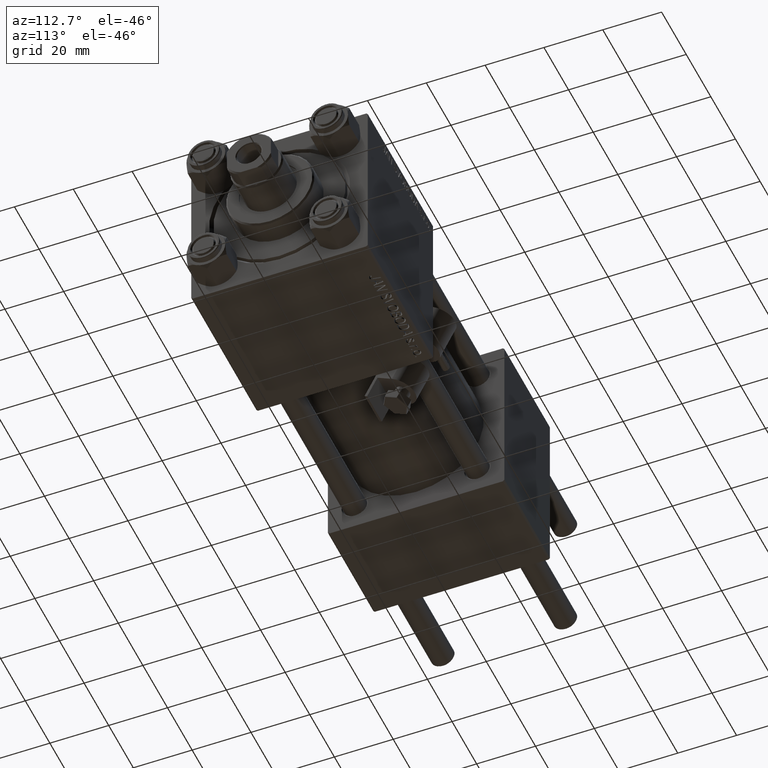
[diagram: clean part render]
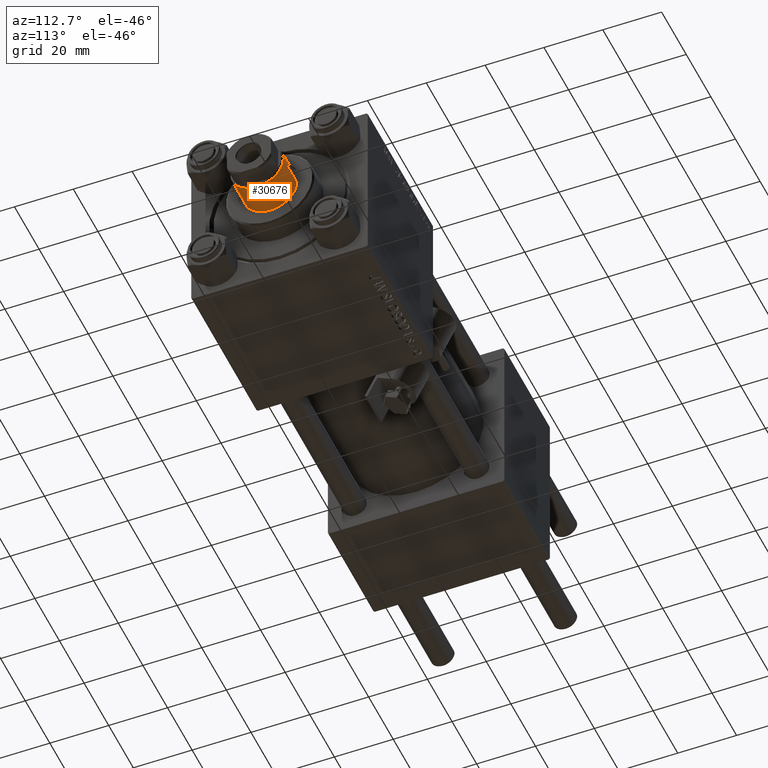
[diagram: same view with one face highlighted and labeled with its STEP entity id]
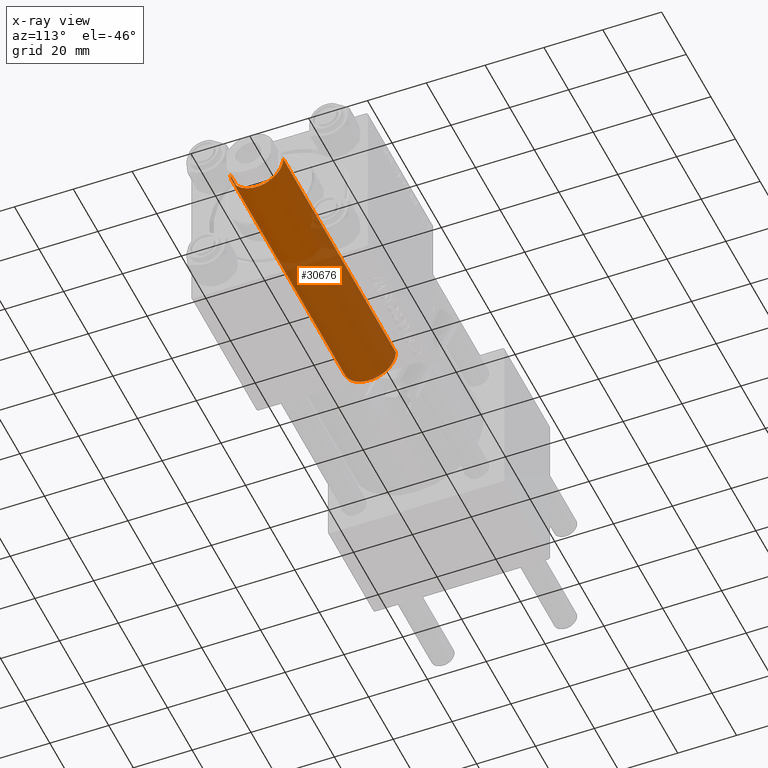
[diagram: x-ray of the same camera — body ghosted, the highlighted face saturated]
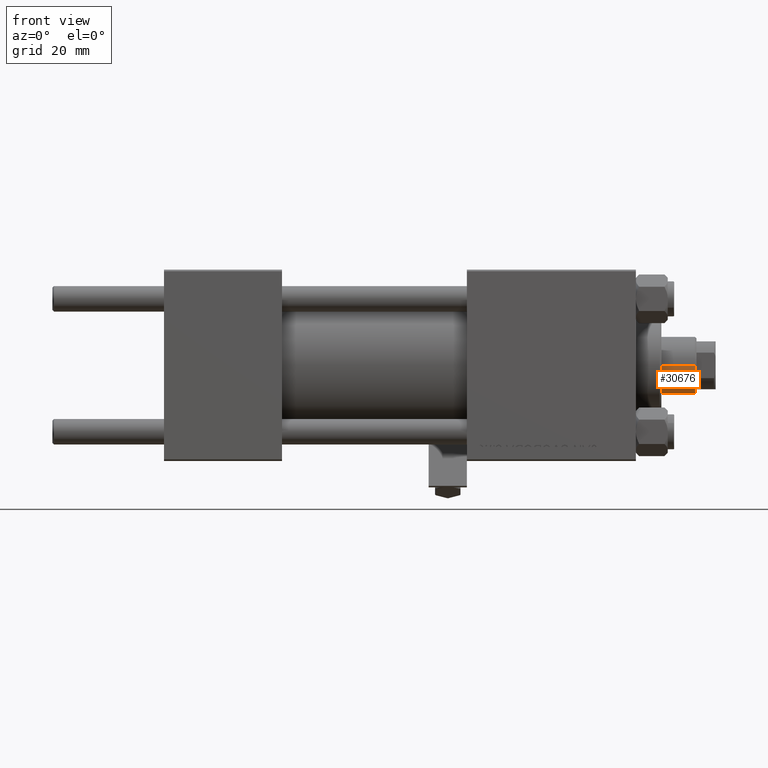
[diagram: same view with one face highlighted and labeled with its STEP entity id]
A machine part, auxiliary view. The second image highlights one B-rep face of the part: STEP entity #30676.
The next image is the same camera in x-ray: the body ghosted, the highlighted face saturated — about 63% of this face is hidden behind the body in this view.
A second angle (front view) of the same face is appended — the face is thin or edge-on in the first view.
In plain terms, the highlighted cylindrical surface (edge-blend (fillet) strip) has radius 9 mm, axis along (-1, 0, 0).
Its self-contained STEP definition (entity closure, byte-faithful):
#2902 = VECTOR ( 'NONE', #43372, 1000.000000000000000 ) ;
#4431 = VECTOR ( 'NONE', #47092, 1000.000000000000000 ) ;
#7700 = CARTESIAN_POINT ( 'NONE',  ( -9.000000000000000000, 0.000000000000000000, 38.00000000000000000 ) ) ;
#8509 = CARTESIAN_POINT ( 'NONE',  ( 9.000000000000000000, 1.102182119232617714E-15, 130.0000000000000000 ) ) ;
#9002 = EDGE_CURVE ( 'NONE', #38570, #18282, #46733, .T. ) ;
#10180 = FACE_OUTER_BOUND ( 'NONE', #20554, .T. ) ;
#12008 = CARTESIAN_POINT ( 'NONE',  ( -9.000000000000000000, 0.000000000000000000, 130.0000000000000000 ) ) ;
#12071 = VERTEX_POINT ( 'NONE', #25207 ) ;
#17048 = CIRCLE ( 'NONE', #23627, 9.000000000000000000 ) ;
#17630 = DIRECTION ( 'NONE',  ( -1.000000000000000000, 0.000000000000000000, 0.000000000000000000 ) ) ;
#17939 = ORIENTED_EDGE ( 'NONE', *, *, #34659, .T. ) ;
#18282 = VERTEX_POINT ( 'NONE', #7700 ) ;
#19326 = EDGE_CURVE ( 'NONE', #38570, #12071, #44588, .T. ) ;
#19335 = CARTESIAN_POINT ( 'NONE',  ( -9.000000000000000000, 0.000000000000000000, 129.5000000000000000 ) ) ;
#20521 = DIRECTION ( 'NONE',  ( 1.000000000000000000, 0.000000000000000000, 0.000000000000000000 ) ) ;
#20554 = EDGE_LOOP ( 'NONE', ( #42897, #24092, #17939, #45450 ) ) ;
#22417 = EDGE_CURVE ( 'NONE', #12071, #41878, #31409, .T. ) ;
#23627 = AXIS2_PLACEMENT_3D ( 'NONE', #29382, #33506, #29640 ) ;
#24092 = ORIENTED_EDGE ( 'NONE', *, *, #22417, .T. ) ;
#24380 = CARTESIAN_POINT ( 'NONE',  ( 0.000000000000000000, 0.000000000000000000, 129.5000000000000000 ) ) ;
#25207 = CARTESIAN_POINT ( 'NONE',  ( 9.000000000000000000, 1.102182119232617714E-15, 129.5000000000000000 ) ) ;
#25604 = CYLINDRICAL_SURFACE ( 'NONE', #37598, 9.000000000000000000 ) ;
#29382 = CARTESIAN_POINT ( 'NONE',  ( 0.000000000000000000, 0.000000000000000000, 38.00000000000000000 ) ) ;
#29640 = DIRECTION ( 'NONE',  ( 1.000000000000000000, 0.000000000000000000, 0.000000000000000000 ) ) ;
#30676 = ADVANCED_FACE ( 'NONE', ( #10180 ), #25604, .T. ) ;
#31409 = LINE ( 'NONE', #8509, #4431 ) ;
#32099 = DIRECTION ( 'NONE',  ( 0.000000000000000000, 0.000000000000000000, -1.000000000000000000 ) ) ;
#33506 = DIRECTION ( 'NONE',  ( 0.000000000000000000, 0.000000000000000000, 1.000000000000000000 ) ) ;
#34659 = EDGE_CURVE ( 'NONE', #41878, #18282, #17048, .T. ) ;
#36665 = DIRECTION ( 'NONE',  ( -0.000000000000000000, -0.000000000000000000, -1.000000000000000000 ) ) ;
#37598 = AXIS2_PLACEMENT_3D ( 'NONE', #49280, #36665, #17630 ) ;
#38570 = VERTEX_POINT ( 'NONE', #19335 ) ;
#41329 = AXIS2_PLACEMENT_3D ( 'NONE', #24380, #32099, #20521 ) ;
#41878 = VERTEX_POINT ( 'NONE', #48919 ) ;
#42897 = ORIENTED_EDGE ( 'NONE', *, *, #19326, .T. ) ;
#43372 = DIRECTION ( 'NONE',  ( -0.000000000000000000, -0.000000000000000000, -1.000000000000000000 ) ) ;
#44588 = CIRCLE ( 'NONE', #41329, 9.000000000000000000 ) ;
#45450 = ORIENTED_EDGE ( 'NONE', *, *, #9002, .F. ) ;
#46733 = LINE ( 'NONE', #12008, #2902 ) ;
#47092 = DIRECTION ( 'NONE',  ( -0.000000000000000000, -0.000000000000000000, -1.000000000000000000 ) ) ;
#48919 = CARTESIAN_POINT ( 'NONE',  ( 9.000000000000000000, 1.102182119232617714E-15, 38.00000000000000000 ) ) ;
#49280 = CARTESIAN_POINT ( 'NONE',  ( 0.000000000000000000, 0.000000000000000000, 130.0000000000000000 ) ) ;